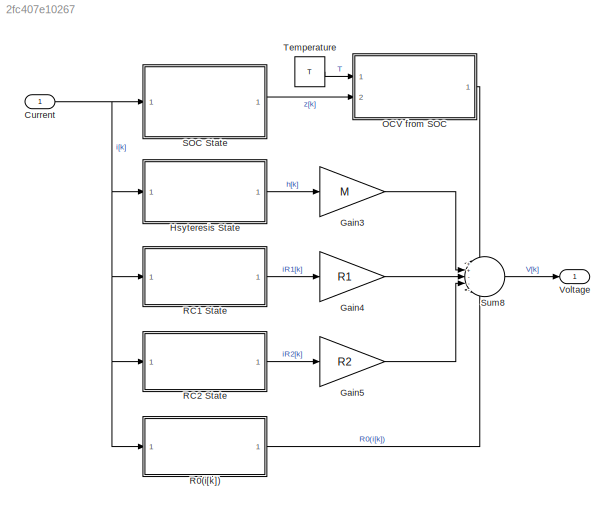
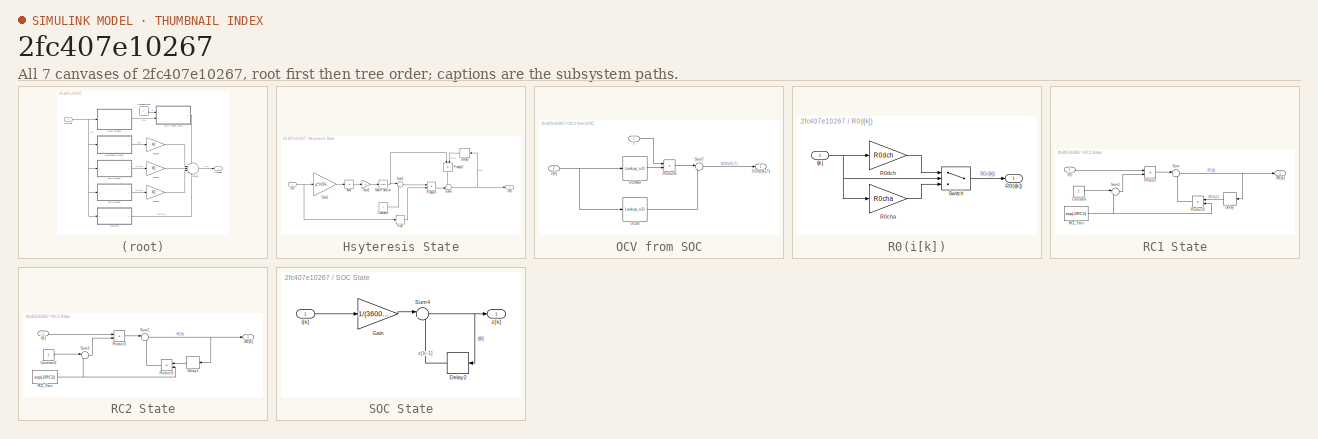
[diagram: thumbnail index - all 7 canvases of the model, root first then tree order]
MODEL slx_2fc407e10267
KIND model
CONFIG AbsTol = auto
CONFIG EnableMultiTasking = off
CONFIG FixedStep = auto
CONFIG MaxStep = auto
CONFIG MinStep = auto
CONFIG RelTol = 1e-3
CONFIG SampleTimeConstraint = Unconstrained
CONFIG SolverName = VariableStepAuto
CONFIG StartTime = 0.0
CONFIG StopTime = 66747
BLOCK [Inport] Current
BLOCK [Gain] Gain3
  Gain = M
BLOCK [Gain] Gain4
  Gain = R1
BLOCK [Gain] Gain5
  Gain = R2
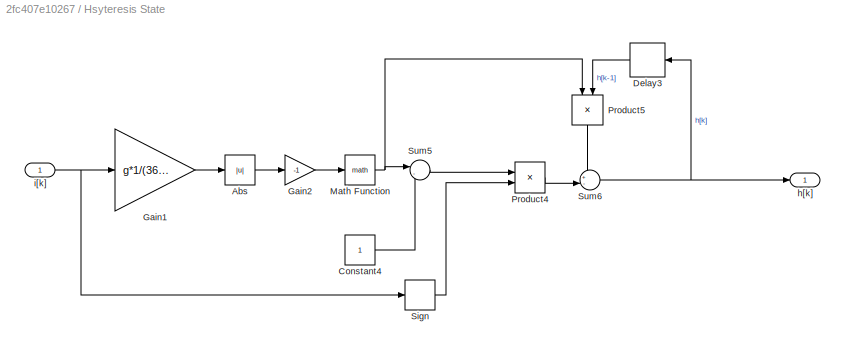
BLOCK [SubSystem] Hsyteresis State
  Ports = [1, 1]
  RequestExecContextInheritance = off
BLOCK [Abs] Hsyteresis State/Abs
  SaturateOnIntegerOverflow = off
BLOCK [Constant] Hsyteresis State/Constant4
BLOCK [Delay] Hsyteresis State/Delay3
  DelayLength = 1
  InitialCondition = -1
  InputPortMap = u0
  Ports = [1, 1]
  SampleTime = 1
BLOCK [Gain] Hsyteresis State/Gain1
  Gain = g*1/(3600*Q)
BLOCK [Gain] Hsyteresis State/Gain2
  Gain = -1
BLOCK [Math] Hsyteresis State/Math Function
  Ports = [1, 1]
  SignedPower = on
BLOCK [Product] Hsyteresis State/Product4
  Ports = [2, 1]
BLOCK [Product] Hsyteresis State/Product5
  NameLocation = left
  Ports = [2, 1]
BLOCK [Signum] Hsyteresis State/Sign
BLOCK [Sum] Hsyteresis State/Sum5
  Inputs = |-+
  Ports = [2, 1]
BLOCK [Sum] Hsyteresis State/Sum6
  Inputs = +-|
  Ports = [2, 1]
BLOCK [Outport] Hsyteresis State/h[k]
BLOCK [Inport] Hsyteresis State/i[k]
BLOCK [SubSystem] OCV from SOC
  Ports = [2, 1]
  RequestExecContextInheritance = off
BLOCK [Outport] OCV from SOC/OCV(z[k],T)
BLOCK [Lookup_n-D] OCV from SOC/OCV0
  BreakpointsForDimension1 = [0:0.005:1]
  InputPortMap = u0
  InternalRulePriority = Speed
  NumberOfTableDimensions = 1
  Ports = [1, 1]
  RndMeth = Simplest
  Table = OCV0
BLOCK [Lookup_n-D] OCV from SOC/OCVRel
  BreakpointsForDimension1 = [0:0.005:1]
  InputPortMap = u0
  InternalRulePriority = Speed
  NumberOfTableDimensions = 1
  Ports = [1, 1]
  RndMeth = Simplest
  Table = OCVRel
BLOCK [Product] OCV from SOC/Product6
  Ports = [2, 1]
BLOCK [Sum] OCV from SOC/Sum7
  Inputs = |++
  Ports = [2, 1]
BLOCK [Inport] OCV from SOC/T
BLOCK [Inport] OCV from SOC/z[k]
  Port = 2
BLOCK [SubSystem] R0(i[k])
  Ports = [1, 1]
  RequestExecContextInheritance = off
BLOCK [Outport] R0(i[k])/R0(i[k])
BLOCK [Gain] R0(i[k])/R0cha
  Gain = R0cha
BLOCK [Gain] R0(i[k])/R0dch
  Gain = R0dch
BLOCK [Switch] R0(i[k])/Switch
  InputSameDT = off
  SaturateOnIntegerOverflow = off
BLOCK [Inport] R0(i[k])/i[k]
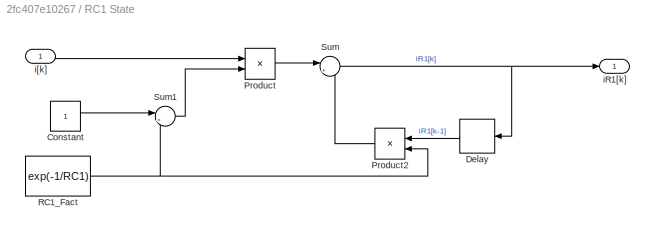
BLOCK [SubSystem] RC1 State
  Ports = [1, 1]
  RequestExecContextInheritance = off
BLOCK [Constant] RC1 State/Constant
BLOCK [Delay] RC1 State/Delay
  DelayLength = 1
  InitialCondition = 0
  InputPortMap = u0
  Ports = [1, 1]
  SampleTime = 1
BLOCK [Product] RC1 State/Product
  Ports = [2, 1]
BLOCK [Product] RC1 State/Product2
  Ports = [2, 1]
BLOCK [Constant] RC1 State/RC1_Fact
  Value = exp(-1/RC1)
BLOCK [Sum] RC1 State/Sum
  Inputs = |++
  Ports = [2, 1]
BLOCK [Sum] RC1 State/Sum1
  Inputs = |+-
  Ports = [2, 1]
BLOCK [Outport] RC1 State/iR1[k]
BLOCK [Inport] RC1 State/i[k]
BLOCK [SubSystem] RC2 State
  Ports = [1, 1]
  RequestExecContextInheritance = off
BLOCK [Constant] RC2 State/Constant2
BLOCK [Delay] RC2 State/Delay1
  DelayLength = 1
  InitialCondition = 0
  InputPortMap = u0
  Ports = [1, 1]
  SampleTime = 1
BLOCK [Product] RC2 State/Product1
  Ports = [2, 1]
BLOCK [Product] RC2 State/Product3
  Ports = [2, 1]
BLOCK [Constant] RC2 State/RC2_Fact
  Value = exp(-1/RC2)
BLOCK [Sum] RC2 State/Sum2
  Inputs = |++
  Ports = [2, 1]
BLOCK [Sum] RC2 State/Sum3
  Inputs = |+-
  Ports = [2, 1]
BLOCK [Outport] RC2 State/iR2[k]
BLOCK [Inport] RC2 State/i[k]
BLOCK [SubSystem] SOC State
  Ports = [1, 1]
  RequestExecContextInheritance = off
BLOCK [Delay] SOC State/Delay2
  DelayLength = 1
  InitialCondition = 1
  InputPortMap = u0
  Ports = [1, 1]
  SampleTime = 1
BLOCK [Gain] SOC State/Gain
  Gain = 1/(3600*Q)
BLOCK [Sum] SOC State/Sum4
  Inputs = |-+
  Ports = [2, 1]
BLOCK [Inport] SOC State/i[k]
BLOCK [Outport] SOC State/z[k]
BLOCK [Sum] Sum8
  Inputs = ++---
  Ports = [5, 1]
BLOCK [Constant] Temperature
  Value = T
BLOCK [Outport] Voltage
  VectorParamsAs1DForOutWhenUnconnected = off
ANNOTATION SOC State: z[k-1]
NET Current:1 -> Hsyteresis State:1, R0(i[k]):1, RC1 State:1, RC2 State:1, SOC State:1
LINE Gain3:1 -> Sum8:2
LINE Gain4:1 -> Sum8:3
LINE Gain5:1 -> Sum8:4
LINE Hsyteresis State/Abs:1 -> Hsyteresis State/Gain2:1
LINE Hsyteresis State/Constant4:1 -> Hsyteresis State/Sum5:2
LINE Hsyteresis State/Delay3:1 -> Hsyteresis State/Product5:2
LINE Hsyteresis State/Gain1:1 -> Hsyteresis State/Abs:1
LINE Hsyteresis State/Gain2:1 -> Hsyteresis State/Math Function:1
NET Hsyteresis State/Math Function:1 -> Hsyteresis State/Product5:1, Hsyteresis State/Sum5:1
LINE Hsyteresis State/Product4:1 -> Hsyteresis State/Sum6:2
LINE Hsyteresis State/Product5:1 -> Hsyteresis State/Sum6:1
LINE Hsyteresis State/Sign:1 -> Hsyteresis State/Product4:2
LINE Hsyteresis State/Sum5:1 -> Hsyteresis State/Product4:1
NET Hsyteresis State/Sum6:1 -> Hsyteresis State/Delay3:1, Hsyteresis State/h[k]:1
NET Hsyteresis State/i[k]:1 -> Hsyteresis State/Gain1:1, Hsyteresis State/Sign:1
LINE Hsyteresis State:1 -> Gain3:1
LINE OCV from SOC/OCV0:1 -> OCV from SOC/Sum7:2
LINE OCV from SOC/OCVRel:1 -> OCV from SOC/Product6:2
LINE OCV from SOC/Product6:1 -> OCV from SOC/Sum7:1
LINE OCV from SOC/Sum7:1 -> OCV from SOC/OCV(z[k],T):1
LINE OCV from SOC/T:1 -> OCV from SOC/Product6:1
NET OCV from SOC/z[k]:1 -> OCV from SOC/OCV0:1, OCV from SOC/OCVRel:1
LINE OCV from SOC:1 -> Sum8:1
LINE R0(i[k])/R0cha:1 -> R0(i[k])/Switch:3
LINE R0(i[k])/R0dch:1 -> R0(i[k])/Switch:1
LINE R0(i[k])/Switch:1 -> R0(i[k])/R0(i[k]):1
NET R0(i[k])/i[k]:1 -> R0(i[k])/R0cha:1, R0(i[k])/R0dch:1, R0(i[k])/Switch:2
LINE R0(i[k]):1 -> Sum8:5
LINE RC1 State/Constant:1 -> RC1 State/Sum1:1
LINE RC1 State/Delay:1 -> RC1 State/Product2:1
LINE RC1 State/Product2:1 -> RC1 State/Sum:2
LINE RC1 State/Product:1 -> RC1 State/Sum:1
NET RC1 State/RC1_Fact:1 -> RC1 State/Product2:2, RC1 State/Sum1:2
LINE RC1 State/Sum1:1 -> RC1 State/Product:2
NET RC1 State/Sum:1 -> RC1 State/Delay:1, RC1 State/iR1[k]:1
LINE RC1 State/i[k]:1 -> RC1 State/Product:1
LINE RC1 State:1 -> Gain4:1
LINE RC2 State/Constant2:1 -> RC2 State/Sum3:1
LINE RC2 State/Delay1:1 -> RC2 State/Product3:1
LINE RC2 State/Product1:1 -> RC2 State/Sum2:1
LINE RC2 State/Product3:1 -> RC2 State/Sum2:2
NET RC2 State/RC2_Fact:1 -> RC2 State/Product3:2, RC2 State/Sum3:2
NET RC2 State/Sum2:1 -> RC2 State/Delay1:1, RC2 State/iR2[k]:1
LINE RC2 State/Sum3:1 -> RC2 State/Product1:2
LINE RC2 State/i[k]:1 -> RC2 State/Product1:1
LINE RC2 State:1 -> Gain5:1
LINE SOC State/Delay2:1 -> SOC State/Sum4:2
LINE SOC State/Gain:1 -> SOC State/Sum4:1
NET SOC State/Sum4:1 -> SOC State/Delay2:1, SOC State/z[k]:1
LINE SOC State/i[k]:1 -> SOC State/Gain:1
LINE SOC State:1 -> OCV from SOC:2
LINE Sum8:1 -> Voltage:1
LINE Temperature:1 -> OCV from SOC:1
note: NET lines group one-source signal fan-out (src -> all destinations, sorted); 1:1 wires keep LINE
